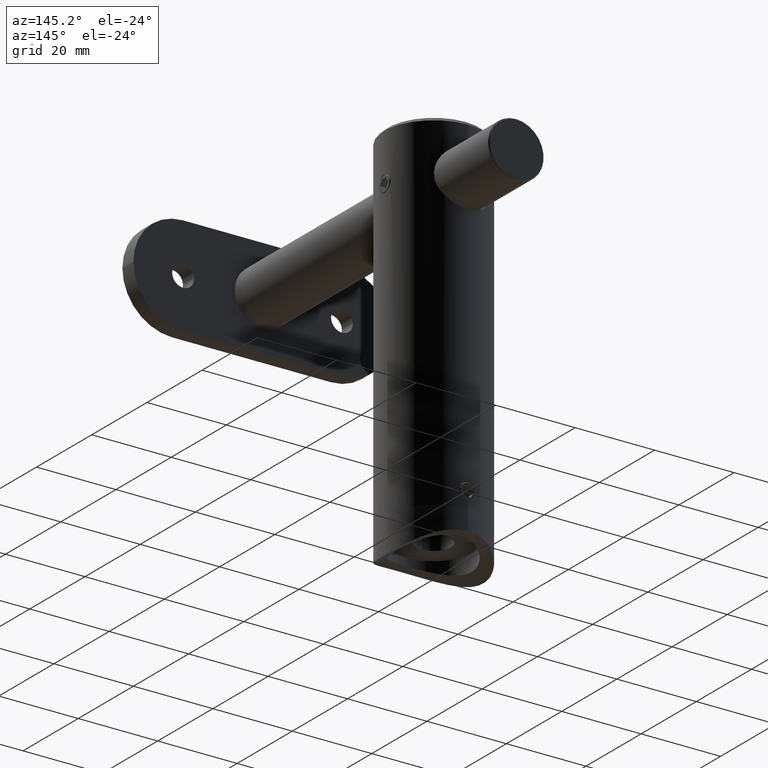
[diagram: clean part render]
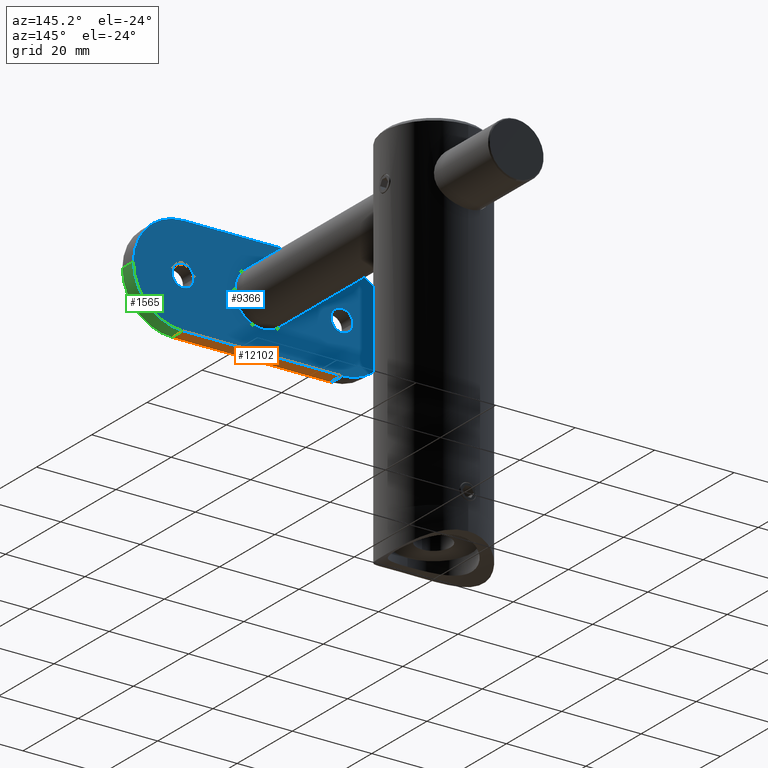
[diagram: same view with three faces highlighted in distinct colors, each labeled with its STEP entity id]
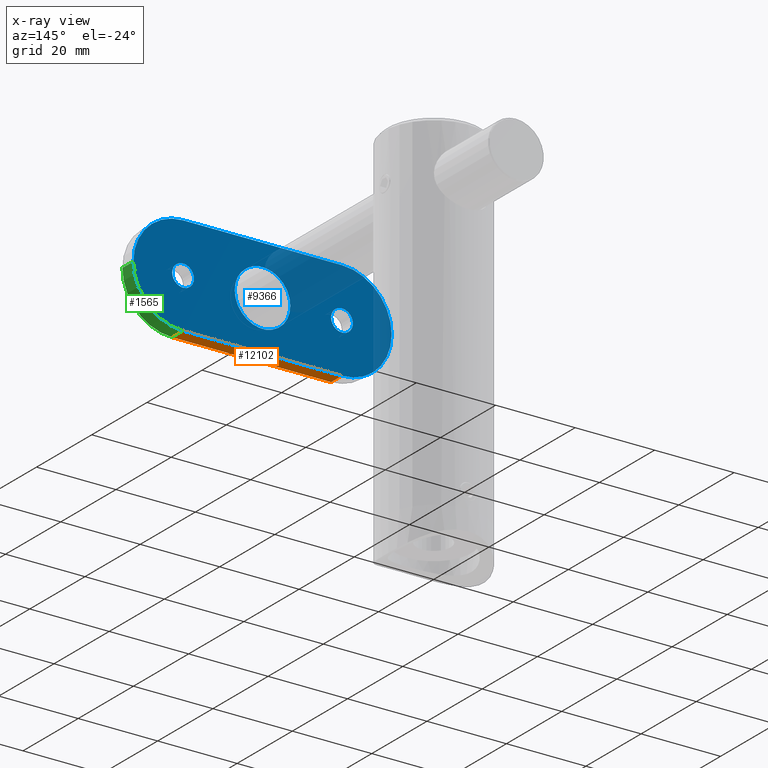
[diagram: x-ray of the same camera — body ghosted, the three highlighted faces saturated]
A machine part, auxiliary view with three faces highlighted in distinct colors.
The next image is the same camera in x-ray (body ghosted, the three faces saturated) — at least one of them is partly hidden behind the body in this view.
Their STEP definitions:

[orange] entity #12102 — the highlighted planar face has unit normal (0, 0, 1).
#8 = LINE ( 'NONE', #12528, #1151 ) ;
#897 = DIRECTION ( 'NONE',  ( -1.000000000000000000, 0.000000000000000000, 0.000000000000000000 ) ) ;
#1151 = VECTOR ( 'NONE', #15547, 1000.000000000000000 ) ;
#1276 = LINE ( 'NONE', #12918, #4298 ) ;
#1948 = EDGE_CURVE ( 'NONE', #14973, #10708, #1276, .T. ) ;
#2270 = DIRECTION ( 'NONE',  ( 0.000000000000000000, 0.000000000000000000, 1.000000000000000000 ) ) ;
#2476 = CARTESIAN_POINT ( 'NONE',  ( 12.49999999999999645, 2.000000000000001776, 32.50000000000000000 ) ) ;
#3631 = DIRECTION ( 'NONE',  ( 0.000000000000000000, 0.000000000000000000, -1.000000000000000000 ) ) ;
#3849 = EDGE_CURVE ( 'NONE', #10217, #16633, #8449, .T. ) ;
#4221 = VECTOR ( 'NONE', #3631, 1000.000000000000000 ) ;
#4298 = VECTOR ( 'NONE', #8422, 1000.000000000000000 ) ;
#4305 = CARTESIAN_POINT ( 'NONE',  ( 12.49999999999999645, 2.000000000000001776, -20.00000000000000355 ) ) ;
#4948 = ORIENTED_EDGE ( 'NONE', *, *, #3849, .T. ) ;
#5802 = DIRECTION ( 'NONE',  ( 0.000000000000000000, 1.000000000000000000, 0.000000000000000000 ) ) ;
#5873 = CARTESIAN_POINT ( 'NONE',  ( 12.49999999999999645, -2.000000000000001776, 20.00000000000000000 ) ) ;
#6821 = EDGE_CURVE ( 'NONE', #14973, #16633, #12825, .T. ) ;
#6911 = ORIENTED_EDGE ( 'NONE', *, *, #9962, .T. ) ;
#8422 = DIRECTION ( 'NONE',  ( -0.000000000000000000, -1.000000000000000000, -0.000000000000000000 ) ) ;
#8449 = LINE ( 'NONE', #4305, #17950 ) ;
#9962 = EDGE_CURVE ( 'NONE', #10708, #10217, #8, .T. ) ;
#10217 = VERTEX_POINT ( 'NONE', #17798 ) ;
#10708 = VERTEX_POINT ( 'NONE', #5873 ) ;
#11901 = CARTESIAN_POINT ( 'NONE',  ( 12.49999999999999645, 2.000000000000001776, -20.00000000000000355 ) ) ;
#12102 = ADVANCED_FACE ( 'NONE', ( #15512 ), #17122, .F. ) ;
#12345 = CARTESIAN_POINT ( 'NONE',  ( 12.49999999999999645, 2.000000000000001776, 20.00000000000000000 ) ) ;
#12528 = CARTESIAN_POINT ( 'NONE',  ( 12.49999999999999645, -2.000000000000001776, 32.50000000000000000 ) ) ;
#12610 = CARTESIAN_POINT ( 'NONE',  ( 12.49999999999999645, 2.000000000000001776, 32.50000000000000000 ) ) ;
#12825 = LINE ( 'NONE', #12610, #4221 ) ;
#12918 = CARTESIAN_POINT ( 'NONE',  ( 12.49999999999999645, -2.000000000000001776, 20.00000000000000000 ) ) ;
#13048 = ORIENTED_EDGE ( 'NONE', *, *, #6821, .F. ) ;
#14973 = VERTEX_POINT ( 'NONE', #12345 ) ;
#15111 = ORIENTED_EDGE ( 'NONE', *, *, #1948, .T. ) ;
#15512 = FACE_OUTER_BOUND ( 'NONE', #18266, .T. ) ;
#15547 = DIRECTION ( 'NONE',  ( 0.000000000000000000, 0.000000000000000000, -1.000000000000000000 ) ) ;
#16633 = VERTEX_POINT ( 'NONE', #11901 ) ;
#17122 = PLANE ( 'NONE',  #17426 ) ;
#17426 = AXIS2_PLACEMENT_3D ( 'NONE', #2476, #897, #2270 ) ;
#17798 = CARTESIAN_POINT ( 'NONE',  ( 12.49999999999999645, -2.000000000000001776, -20.00000000000000355 ) ) ;
#17950 = VECTOR ( 'NONE', #5802, 1000.000000000000000 ) ;
#18266 = EDGE_LOOP ( 'NONE', ( #6911, #4948, #13048, #15111 ) ) ;

[blue] entity #9366 — the highlighted planar face has unit normal (0, -1, 0).
#8 = LINE ( 'NONE', #12528, #1151 ) ;
#139 = VERTEX_POINT ( 'NONE', #7342 ) ;
#270 = DIRECTION ( 'NONE',  ( 0.000000000000000000, 0.000000000000000000, 1.000000000000000000 ) ) ;
#352 = AXIS2_PLACEMENT_3D ( 'NONE', #11733, #2609, #18841 ) ;
#894 = CARTESIAN_POINT ( 'NONE',  ( -12.50000000000001066, -2.000000000000001776, 32.50000000000005684 ) ) ;
#1151 = VECTOR ( 'NONE', #15547, 1000.000000000000000 ) ;
#1412 = DIRECTION ( 'NONE',  ( 0.000000000000000000, 0.000000000000000000, 1.000000000000000000 ) ) ;
#1454 = CARTESIAN_POINT ( 'NONE',  ( 0.000000000000000000, -2.000000000000001776, 22.75000000000000000 ) ) ;
#1571 = CARTESIAN_POINT ( 'NONE',  ( 3.367778697655220026E-16, -2.000000000000001776, 17.25000000000000000 ) ) ;
#1779 = CARTESIAN_POINT ( 'NONE',  ( 0.000000000000000000, -2.000000000000001776, -20.00000000000000000 ) ) ;
#1837 = CIRCLE ( 'NONE', #14821, 12.50000000000000000 ) ;
#2407 = DIRECTION ( 'NONE',  ( 0.000000000000000000, 0.000000000000000000, 1.000000000000000000 ) ) ;
#2462 = EDGE_CURVE ( 'NONE', #19053, #11569, #16168, .T. ) ;
#2609 = DIRECTION ( 'NONE',  ( 0.000000000000000000, 1.000000000000000000, 0.000000000000000000 ) ) ;
#2746 = CIRCLE ( 'NONE', #15833, 12.50000000000000000 ) ;
#2788 = CIRCLE ( 'NONE', #14679, 12.50000000000000000 ) ;
#3163 = EDGE_CURVE ( 'NONE', #16565, #8996, #13662, .T. ) ;
#3277 = DIRECTION ( 'NONE',  ( 0.000000000000000000, 0.000000000000000000, 1.000000000000000000 ) ) ;
#3583 = CARTESIAN_POINT ( 'NONE',  ( 0.000000000000000000, -2.000000000000001776, -32.50000000000000000 ) ) ;
#3945 = CIRCLE ( 'NONE', #352, 2.749999999999999112 ) ;
#4323 = CARTESIAN_POINT ( 'NONE',  ( 0.000000000000000000, -2.000000000000001776, 0.000000000000000000 ) ) ;
#4860 = DIRECTION ( 'NONE',  ( 0.000000000000000000, 0.000000000000000000, -1.000000000000000000 ) ) ;
#4927 = ORIENTED_EDGE ( 'NONE', *, *, #18012, .T. ) ;
#4928 = AXIS2_PLACEMENT_3D ( 'NONE', #1779, #13547, #15142 ) ;
#5143 = DIRECTION ( 'NONE',  ( 0.000000000000000000, 1.000000000000000000, 0.000000000000000000 ) ) ;
#5356 = AXIS2_PLACEMENT_3D ( 'NONE', #11076, #5143, #17012 ) ;
#5435 = DIRECTION ( 'NONE',  ( 0.000000000000000000, -1.000000000000000000, 0.000000000000000000 ) ) ;
#5513 = DIRECTION ( 'NONE',  ( 0.000000000000000000, 0.000000000000000000, -1.000000000000000000 ) ) ;
#5614 = EDGE_CURVE ( 'NONE', #9814, #12388, #5872, .T. ) ;
#5661 = CARTESIAN_POINT ( 'NONE',  ( -12.50000000000001066, -2.000000000000001776, 20.00000000000000000 ) ) ;
#5696 = VERTEX_POINT ( 'NONE', #6957 ) ;
#5872 = CIRCLE ( 'NONE', #8891, 12.50000000000000000 ) ;
#5873 = CARTESIAN_POINT ( 'NONE',  ( 12.49999999999999645, -2.000000000000001776, 20.00000000000000000 ) ) ;
#5979 = DIRECTION ( 'NONE',  ( 0.000000000000000000, 0.000000000000000000, 1.000000000000000000 ) ) ;
#6578 = ORIENTED_EDGE ( 'NONE', *, *, #2462, .T. ) ;
#6840 = ORIENTED_EDGE ( 'NONE', *, *, #10928, .T. ) ;
#6957 = CARTESIAN_POINT ( 'NONE',  ( 8.572527594031473190E-16, -2.000000000000001776, 7.000000000000000000 ) ) ;
#6963 = LINE ( 'NONE', #12935, #11177 ) ;
#7148 = CARTESIAN_POINT ( 'NONE',  ( 0.000000000000000000, -2.000000000000001776, -17.25000000000000000 ) ) ;
#7342 = CARTESIAN_POINT ( 'NONE',  ( -12.50000000000001066, -2.000000000000001776, -20.00000000000000355 ) ) ;
#7350 = DIRECTION ( 'NONE',  ( 0.000000000000000000, 1.000000000000000000, 0.000000000000000000 ) ) ;
#7480 = CARTESIAN_POINT ( 'NONE',  ( 0.000000000000000000, -2.000000000000001776, 20.00000000000000000 ) ) ;
#7599 = CARTESIAN_POINT ( 'NONE',  ( 0.000000000000000000, -2.000000000000001776, -20.00000000000000355 ) ) ;
#7708 = AXIS2_PLACEMENT_3D ( 'NONE', #16657, #12411, #4860 ) ;
#7724 = ORIENTED_EDGE ( 'NONE', *, *, #9294, .T. ) ;
#8383 = PLANE ( 'NONE',  #10440 ) ;
#8891 = AXIS2_PLACEMENT_3D ( 'NONE', #18030, #10881, #270 ) ;
#8996 = VERTEX_POINT ( 'NONE', #14126 ) ;
#9045 = EDGE_CURVE ( 'NONE', #5696, #10769, #17425, .T. ) ;
#9294 = EDGE_CURVE ( 'NONE', #8996, #16565, #11439, .T. ) ;
#9366 = ADVANCED_FACE ( 'NONE', ( #13965, #14423, #12364, #10506 ), #8383, .F. ) ;
#9814 = VERTEX_POINT ( 'NONE', #10736 ) ;
#9844 = EDGE_CURVE ( 'NONE', #10769, #5696, #16939, .T. ) ;
#9962 = EDGE_CURVE ( 'NONE', #10708, #10217, #8, .T. ) ;
#10217 = VERTEX_POINT ( 'NONE', #17798 ) ;
#10253 = ORIENTED_EDGE ( 'NONE', *, *, #5614, .T. ) ;
#10440 = AXIS2_PLACEMENT_3D ( 'NONE', #894, #18632, #2407 ) ;
#10506 = FACE_OUTER_BOUND ( 'NONE', #11847, .T. ) ;
#10615 = EDGE_CURVE ( 'NONE', #11569, #19053, #3945, .T. ) ;
#10708 = VERTEX_POINT ( 'NONE', #5873 ) ;
#10736 = CARTESIAN_POINT ( 'NONE',  ( 0.000000000000000000, -2.000000000000001776, 32.50000000000000000 ) ) ;
#10766 = ORIENTED_EDGE ( 'NONE', *, *, #10615, .T. ) ;
#10769 = VERTEX_POINT ( 'NONE', #12115 ) ;
#10881 = DIRECTION ( 'NONE',  ( -0.000000000000000000, -1.000000000000000000, -0.000000000000000000 ) ) ;
#10928 = EDGE_CURVE ( 'NONE', #12388, #139, #6963, .T. ) ;
#11076 = CARTESIAN_POINT ( 'NONE',  ( 0.000000000000000000, -2.000000000000001776, 20.00000000000000000 ) ) ;
#11156 = DIRECTION ( 'NONE',  ( 8.881784197001252323E-16, 0.000000000000000000, 1.000000000000000000 ) ) ;
#11177 = VECTOR ( 'NONE', #5513, 1000.000000000000000 ) ;
#11208 = EDGE_CURVE ( 'NONE', #139, #11744, #1837, .T. ) ;
#11439 = CIRCLE ( 'NONE', #4928, 2.749999999999999112 ) ;
#11464 = EDGE_LOOP ( 'NONE', ( #13751, #7724 ) ) ;
#11569 = VERTEX_POINT ( 'NONE', #1454 ) ;
#11725 = EDGE_LOOP ( 'NONE', ( #18420, #15215 ) ) ;
#11733 = CARTESIAN_POINT ( 'NONE',  ( 0.000000000000000000, -2.000000000000001776, 20.00000000000000000 ) ) ;
#11744 = VERTEX_POINT ( 'NONE', #3583 ) ;
#11797 = EDGE_LOOP ( 'NONE', ( #10766, #6578 ) ) ;
#11847 = EDGE_LOOP ( 'NONE', ( #18681, #4927, #17530, #13944, #10253, #6840 ) ) ;
#12115 = CARTESIAN_POINT ( 'NONE',  ( 0.000000000000000000, -2.000000000000001776, -7.000000000000000000 ) ) ;
#12250 = AXIS2_PLACEMENT_3D ( 'NONE', #16208, #7350, #1412 ) ;
#12364 = FACE_BOUND ( 'NONE', #11464, .T. ) ;
#12388 = VERTEX_POINT ( 'NONE', #5661 ) ;
#12411 = DIRECTION ( 'NONE',  ( 0.000000000000000000, -1.000000000000000000, 0.000000000000000000 ) ) ;
#12528 = CARTESIAN_POINT ( 'NONE',  ( 12.49999999999999645, -2.000000000000001776, 32.50000000000000000 ) ) ;
#12935 = CARTESIAN_POINT ( 'NONE',  ( -12.50000000000001066, -2.000000000000001776, 32.50000000000005684 ) ) ;
#13547 = DIRECTION ( 'NONE',  ( 0.000000000000000000, 1.000000000000000000, 0.000000000000000000 ) ) ;
#13662 = CIRCLE ( 'NONE', #12250, 2.749999999999999112 ) ;
#13751 = ORIENTED_EDGE ( 'NONE', *, *, #3163, .T. ) ;
#13944 = ORIENTED_EDGE ( 'NONE', *, *, #16628, .T. ) ;
#13965 = FACE_BOUND ( 'NONE', #11725, .T. ) ;
#14126 = CARTESIAN_POINT ( 'NONE',  ( 3.367778697655220026E-16, -2.000000000000001776, -22.75000000000000000 ) ) ;
#14423 = FACE_BOUND ( 'NONE', #11797, .T. ) ;
#14679 = AXIS2_PLACEMENT_3D ( 'NONE', #7480, #19214, #5979 ) ;
#14821 = AXIS2_PLACEMENT_3D ( 'NONE', #17213, #17087, #11156 ) ;
#15142 = DIRECTION ( 'NONE',  ( 0.000000000000000000, 0.000000000000000000, 1.000000000000000000 ) ) ;
#15215 = ORIENTED_EDGE ( 'NONE', *, *, #9045, .F. ) ;
#15547 = DIRECTION ( 'NONE',  ( 0.000000000000000000, 0.000000000000000000, -1.000000000000000000 ) ) ;
#15833 = AXIS2_PLACEMENT_3D ( 'NONE', #7599, #17935, #3277 ) ;
#16168 = CIRCLE ( 'NONE', #5356, 2.749999999999999112 ) ;
#16191 = DIRECTION ( 'NONE',  ( 0.000000000000000000, 0.000000000000000000, -1.000000000000000000 ) ) ;
#16208 = CARTESIAN_POINT ( 'NONE',  ( 0.000000000000000000, -2.000000000000001776, -20.00000000000000000 ) ) ;
#16565 = VERTEX_POINT ( 'NONE', #7148 ) ;
#16628 = EDGE_CURVE ( 'NONE', #10708, #9814, #2788, .T. ) ;
#16657 = CARTESIAN_POINT ( 'NONE',  ( 0.000000000000000000, -2.000000000000001776, 0.000000000000000000 ) ) ;
#16743 = AXIS2_PLACEMENT_3D ( 'NONE', #4323, #5435, #16191 ) ;
#16939 = CIRCLE ( 'NONE', #7708, 7.000000000000000000 ) ;
#17012 = DIRECTION ( 'NONE',  ( 0.000000000000000000, 0.000000000000000000, 1.000000000000000000 ) ) ;
#17087 = DIRECTION ( 'NONE',  ( -0.000000000000000000, -1.000000000000000000, -0.000000000000000000 ) ) ;
#17213 = CARTESIAN_POINT ( 'NONE',  ( 0.000000000000000000, -2.000000000000001776, -20.00000000000000355 ) ) ;
#17425 = CIRCLE ( 'NONE', #16743, 7.000000000000000000 ) ;
#17530 = ORIENTED_EDGE ( 'NONE', *, *, #9962, .F. ) ;
#17798 = CARTESIAN_POINT ( 'NONE',  ( 12.49999999999999645, -2.000000000000001776, -20.00000000000000355 ) ) ;
#17935 = DIRECTION ( 'NONE',  ( -0.000000000000000000, -1.000000000000000000, -0.000000000000000000 ) ) ;
#18012 = EDGE_CURVE ( 'NONE', #11744, #10217, #2746, .T. ) ;
#18030 = CARTESIAN_POINT ( 'NONE',  ( 0.000000000000000000, -2.000000000000001776, 20.00000000000000000 ) ) ;
#18420 = ORIENTED_EDGE ( 'NONE', *, *, #9844, .F. ) ;
#18632 = DIRECTION ( 'NONE',  ( 0.000000000000000000, 1.000000000000000000, 0.000000000000000000 ) ) ;
#18681 = ORIENTED_EDGE ( 'NONE', *, *, #11208, .T. ) ;
#18841 = DIRECTION ( 'NONE',  ( 0.000000000000000000, 0.000000000000000000, 1.000000000000000000 ) ) ;
#19053 = VERTEX_POINT ( 'NONE', #1571 ) ;
#19214 = DIRECTION ( 'NONE',  ( -0.000000000000000000, -1.000000000000000000, -0.000000000000000000 ) ) ;

[green] entity #1565 — the highlighted cylindrical surface (partial cylindrical patch) has radius 12.5 mm, axis along (0, -1, 0).
#378 = ORIENTED_EDGE ( 'NONE', *, *, #8828, .F. ) ;
#1307 = AXIS2_PLACEMENT_3D ( 'NONE', #14807, #13407, #2798 ) ;
#1565 = ADVANCED_FACE ( 'NONE', ( #16836 ), #2921, .T. ) ;
#1608 = DIRECTION ( 'NONE',  ( 0.000000000000000000, 0.000000000000000000, 1.000000000000000000 ) ) ;
#1753 = AXIS2_PLACEMENT_3D ( 'NONE', #10268, #14723, #1608 ) ;
#2746 = CIRCLE ( 'NONE', #15833, 12.50000000000000000 ) ;
#2798 = DIRECTION ( 'NONE',  ( 0.000000000000000000, 0.000000000000000000, -1.000000000000000000 ) ) ;
#2921 = CYLINDRICAL_SURFACE ( 'NONE', #1753, 12.50000000000000000 ) ;
#3277 = DIRECTION ( 'NONE',  ( 0.000000000000000000, 0.000000000000000000, 1.000000000000000000 ) ) ;
#3583 = CARTESIAN_POINT ( 'NONE',  ( 0.000000000000000000, -2.000000000000001776, -32.50000000000000000 ) ) ;
#3849 = EDGE_CURVE ( 'NONE', #10217, #16633, #8449, .T. ) ;
#4305 = CARTESIAN_POINT ( 'NONE',  ( 12.49999999999999645, 2.000000000000001776, -20.00000000000000355 ) ) ;
#4659 = LINE ( 'NONE', #10553, #17875 ) ;
#5802 = DIRECTION ( 'NONE',  ( 0.000000000000000000, 1.000000000000000000, 0.000000000000000000 ) ) ;
#6538 = CIRCLE ( 'NONE', #1307, 12.49999999999999645 ) ;
#7599 = CARTESIAN_POINT ( 'NONE',  ( 0.000000000000000000, -2.000000000000001776, -20.00000000000000355 ) ) ;
#8449 = LINE ( 'NONE', #4305, #17950 ) ;
#8767 = CARTESIAN_POINT ( 'NONE',  ( 0.000000000000000000, 2.000000000000001776, -32.50000000000000000 ) ) ;
#8828 = EDGE_CURVE ( 'NONE', #16633, #15838, #6538, .T. ) ;
#8942 = ORIENTED_EDGE ( 'NONE', *, *, #3849, .F. ) ;
#9047 = ORIENTED_EDGE ( 'NONE', *, *, #15974, .T. ) ;
#10217 = VERTEX_POINT ( 'NONE', #17798 ) ;
#10268 = CARTESIAN_POINT ( 'NONE',  ( 0.000000000000000000, 2.000000000000001776, -20.00000000000000355 ) ) ;
#10421 = DIRECTION ( 'NONE',  ( -0.000000000000000000, 1.000000000000000000, -0.000000000000000000 ) ) ;
#10553 = CARTESIAN_POINT ( 'NONE',  ( 0.000000000000000000, 0.000000000000000000, -32.50000000000000000 ) ) ;
#11744 = VERTEX_POINT ( 'NONE', #3583 ) ;
#11901 = CARTESIAN_POINT ( 'NONE',  ( 12.49999999999999645, 2.000000000000001776, -20.00000000000000355 ) ) ;
#11935 = ORIENTED_EDGE ( 'NONE', *, *, #18012, .F. ) ;
#13407 = DIRECTION ( 'NONE',  ( -0.000000000000000000, 1.000000000000000000, -0.000000000000000000 ) ) ;
#14500 = EDGE_LOOP ( 'NONE', ( #11935, #9047, #378, #8942 ) ) ;
#14723 = DIRECTION ( 'NONE',  ( 0.000000000000000000, 1.000000000000000000, 0.000000000000000000 ) ) ;
#14807 = CARTESIAN_POINT ( 'NONE',  ( 0.000000000000000000, 2.000000000000001776, -20.00000000000000355 ) ) ;
#15833 = AXIS2_PLACEMENT_3D ( 'NONE', #7599, #17935, #3277 ) ;
#15838 = VERTEX_POINT ( 'NONE', #8767 ) ;
#15974 = EDGE_CURVE ( 'NONE', #11744, #15838, #4659, .T. ) ;
#16633 = VERTEX_POINT ( 'NONE', #11901 ) ;
#16836 = FACE_OUTER_BOUND ( 'NONE', #14500, .T. ) ;
#17798 = CARTESIAN_POINT ( 'NONE',  ( 12.49999999999999645, -2.000000000000001776, -20.00000000000000355 ) ) ;
#17875 = VECTOR ( 'NONE', #10421, 1000.000000000000000 ) ;
#17935 = DIRECTION ( 'NONE',  ( -0.000000000000000000, -1.000000000000000000, -0.000000000000000000 ) ) ;
#17950 = VECTOR ( 'NONE', #5802, 1000.000000000000000 ) ;
#18012 = EDGE_CURVE ( 'NONE', #11744, #10217, #2746, .T. ) ;